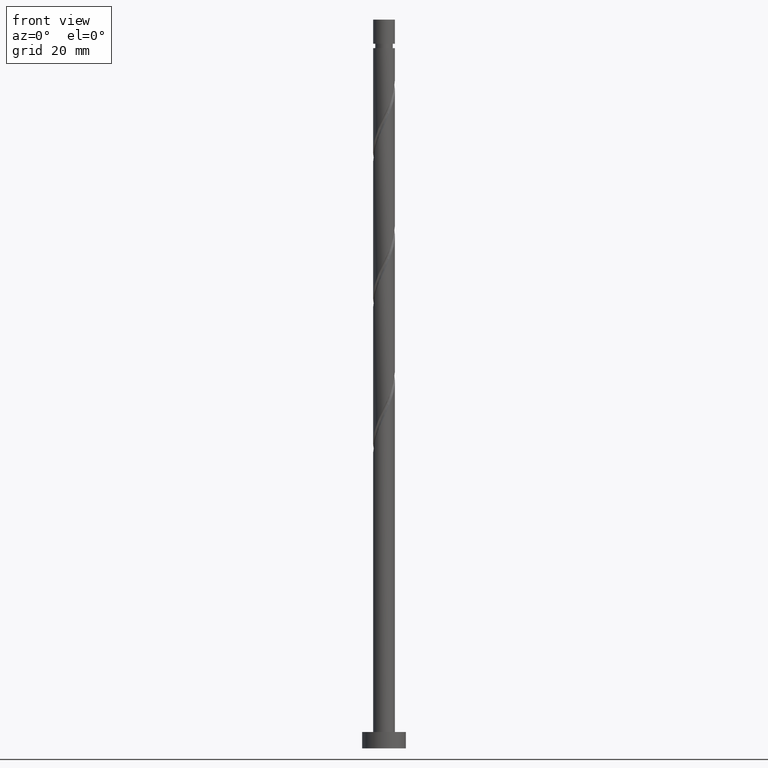
[diagram: clean part render]
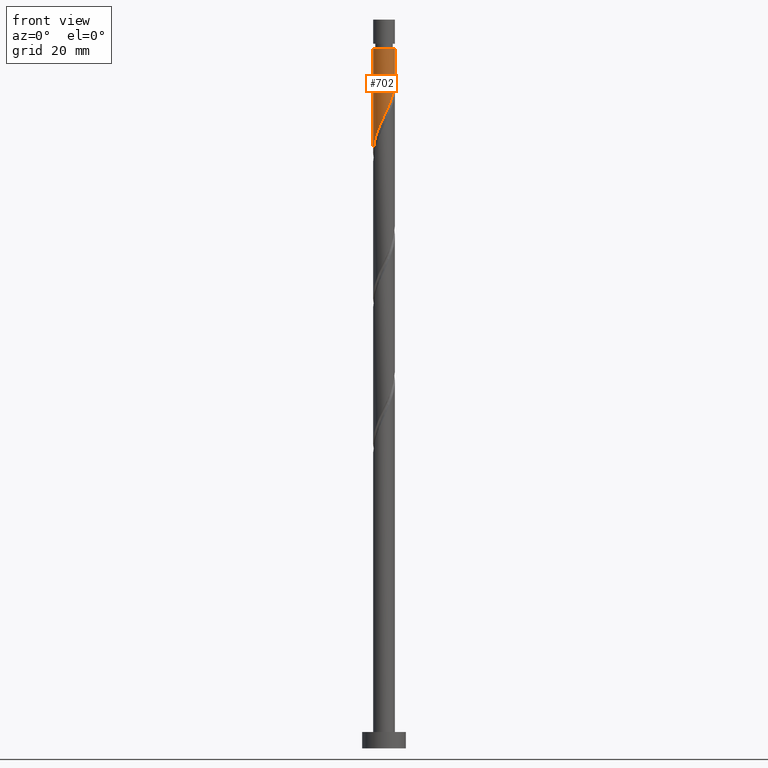
[diagram: same view with one face highlighted and labeled with its STEP entity id]
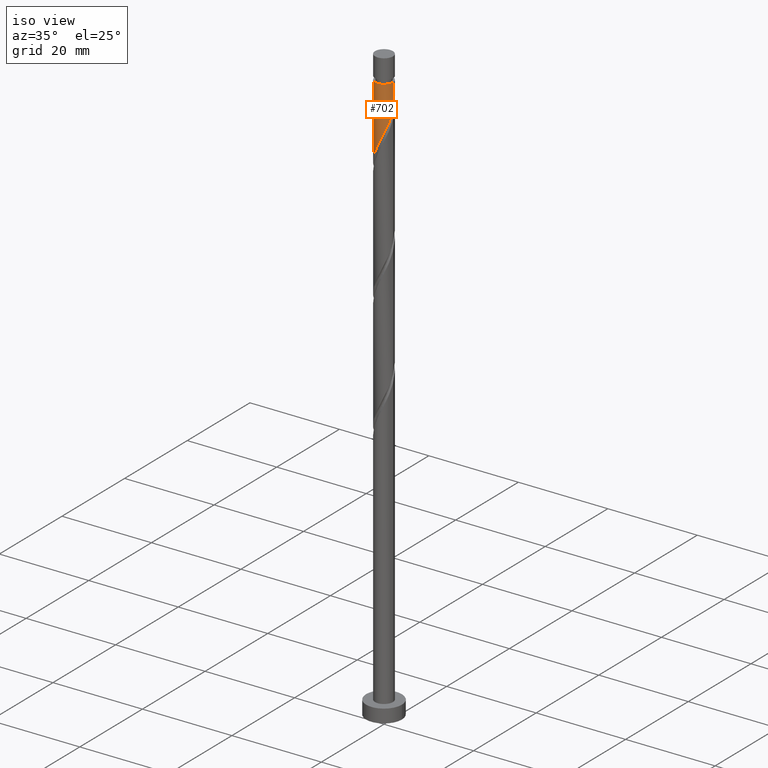
[diagram: same view with one face highlighted and labeled with its STEP entity id]
A machine part, front view. The second image highlights one B-rep face of the part: STEP entity #702.
A second angle (iso view) of the same face is appended — the face is thin or edge-on in the first view.
In plain terms, the highlighted cylindrical surface (edge-blend (fillet) strip) has radius 2 mm, axis along (-0, -0, -1).
Its self-contained STEP definition (entity closure, byte-faithful):
#1 = CARTESIAN_POINT ( 'NONE',  ( 1.980155124014551182, -0.4020876473299556109, 121.5479993580054696 ) ) ;
#4 = VERTEX_POINT ( 'NONE', #516 ) ;
#21 = FACE_OUTER_BOUND ( 'NONE', #221, .T. ) ;
#40 = CARTESIAN_POINT ( 'NONE',  ( 0.000000000000000000, 0.000000000000000000, 133.4499999999999886 ) ) ;
#106 = CARTESIAN_POINT ( 'NONE',  ( -2.000000000000000444, 1.884559408640555319E-15, 109.0641205039730437 ) ) ;
#114 = CARTESIAN_POINT ( 'NONE',  ( -1.741900447066338176, -0.9827425057002935338, 111.2449690549751722 ) ) ;
#140 = CARTESIAN_POINT ( 'NONE',  ( 1.220637884402353990, -1.584311571365224047, 118.5176963277024527 ) ) ;
#189 = VERTEX_POINT ( 'NONE', #356 ) ;
#191 = VECTOR ( 'NONE', #317, 1000.000000000000000 ) ;
#221 = EDGE_LOOP ( 'NONE', ( #1522, #252, #1319, #403 ) ) ;
#237 = CARTESIAN_POINT ( 'NONE',  ( -1.394470680848406197, -1.433684595806965500, 112.4570902670963761 ) ) ;
#245 = CARTESIAN_POINT ( 'NONE',  ( -1.188337955536407309, -1.634179211325358372, 113.0631508731569852 ) ) ;
#252 = ORIENTED_EDGE ( 'NONE', *, *, #1128, .T. ) ;
#253 = CARTESIAN_POINT ( 'NONE',  ( -0.3979949748426485634, -1.959999999999999964, 114.8813326913388266 ) ) ;
#301 = CARTESIAN_POINT ( 'NONE',  ( -1.999999999999996669, 0.000000000000000000, 128.2146660246721694 ) ) ;
#305 = VECTOR ( 'NONE', #566, 1000.000000000000000 ) ;
#314 = EDGE_CURVE ( 'NONE', #189, #4, #1289, .T. ) ;
#317 = DIRECTION ( 'NONE',  ( -0.000000000000000000, -0.000000000000000000, -1.000000000000000000 ) ) ;
#356 = CARTESIAN_POINT ( 'NONE',  ( 2.000000000000000000, 4.786182625118871402E-16, 122.3974538373063723 ) ) ;
#366 = CARTESIAN_POINT ( 'NONE',  ( 1.883409435608316418, -0.6728810428757545647, 120.9419387519448463 ) ) ;
#376 = CARTESIAN_POINT ( 'NONE',  ( -2.000000000000000888, -0.2290578547702447343, 109.5500804569443574 ) ) ;
#390 = CARTESIAN_POINT ( 'NONE',  ( 1.617545623245912001, -1.176242388590886589, 119.7298175398236566 ) ) ;
#403 = ORIENTED_EDGE ( 'NONE', *, *, #314, .F. ) ;
#494 = VERTEX_POINT ( 'NONE', #301 ) ;
#496 = CARTESIAN_POINT ( 'NONE',  ( 1.996690616564939846, -0.1150068768444773709, 122.1540599640660787 ) ) ;
#516 = CARTESIAN_POINT ( 'NONE',  ( -2.000000000000000444, 1.884559408640555319E-15, 109.0641205039730437 ) ) ;
#541 = VERTEX_POINT ( 'NONE', #1431 ) ;
#566 = DIRECTION ( 'NONE',  ( -0.000000000000000000, -0.000000000000000000, -1.000000000000000000 ) ) ;
#610 = CARTESIAN_POINT ( 'NONE',  ( 2.000000000000000444, -0.05755105304764637081, 122.2753558325881471 ) ) ;
#642 = CARTESIAN_POINT ( 'NONE',  ( 0.4568343776401059264, -1.968245701812300963, 116.6995145095206396 ) ) ;
#702 = ADVANCED_FACE ( 'NONE', ( #21 ), #1577, .T. ) ;
#737 = CARTESIAN_POINT ( 'NONE',  ( -1.883197487972271711, -0.7322950311120142164, 110.6389084489145773 ) ) ;
#819 = EDGE_CURVE ( 'NONE', #494, #4, #850, .T. ) ;
#850 = LINE ( 'NONE', #1372, #191 ) ;
#861 = CARTESIAN_POINT ( 'NONE',  ( 1.786663747202082320, -0.9436744384215538517, 120.3358781458842799 ) ) ;
#868 = CARTESIAN_POINT ( 'NONE',  ( 1.448427499289742126, -1.408810338760219993, 119.1237569337630617 ) ) ;
#877 = CARTESIAN_POINT ( 'NONE',  ( -1.600603406160405084, -1.233189980288572851, 111.8510296610357955 ) ) ;
#1003 = CARTESIAN_POINT ( 'NONE',  ( 0.1703224295138018596, -1.992734370156875157, 116.0934539034600306 ) ) ;
#1058 = DIRECTION ( 'NONE',  ( -0.000000000000000000, -0.000000000000000000, -1.000000000000000000 ) ) ;
#1087 = CARTESIAN_POINT ( 'NONE',  ( 0.000000000000000000, 0.000000000000000000, 128.2146660246721694 ) ) ;
#1107 = EDGE_CURVE ( 'NONE', #541, #189, #1220, .T. ) ;
#1128 = EDGE_CURVE ( 'NONE', #541, #494, #1456, .T. ) ;
#1129 = AXIS2_PLACEMENT_3D ( 'NONE', #40, #1058, #1197 ) ;
#1158 = CARTESIAN_POINT ( 'NONE',  ( -0.6798004310727959743, -1.902776961498551911, 114.2752720852782176 ) ) ;
#1197 = DIRECTION ( 'NONE',  ( -1.000000000000000000, 0.000000000000000000, 0.000000000000000000 ) ) ;
#1220 = LINE ( 'NONE', #1508, #305 ) ;
#1260 = CARTESIAN_POINT ( 'NONE',  ( -1.948211798543800333, -0.4521844623765076676, 110.0328478428539398 ) ) ;
#1287 = CARTESIAN_POINT ( 'NONE',  ( 2.000000000000000000, 4.786182625118871402E-16, 122.3974538373063723 ) ) ;
#1289 =( BOUNDED_CURVE ( )  B_SPLINE_CURVE ( 2, ( #1287, #610, #496, #1, #366, #861, #390, #868, #140, #1649, #1510, #642, #1003, #1391, #253, #1158, #1383, #245, #237, #877, #114, #737, #1260, #376, #106 ),
 .UNSPECIFIED., .F., .T. ) 
 B_SPLINE_CURVE_WITH_KNOTS ( ( 3, 2, 2, 2, 2, 2, 2, 2, 2, 2, 2, 2, 3 ),
 ( 0.3045252162417513841, 0.3068181818181818232, 0.3181818181818181768, 0.3295454545454545303, 0.3409090909090908839, 0.3522727272727272929, 0.3636363636363636465, 0.3750000000000000000, 0.3863636363636363535, 0.3977272727272727071, 0.4090909090909091161, 0.4204545454545454697, 0.4295252162417513841 ),
 .UNSPECIFIED. ) 
 CURVE ( )  GEOMETRIC_REPRESENTATION_ITEM ( )  RATIONAL_B_SPLINE_CURVE ( ( 0.9061101570135567940, 0.9072237824201390133, 0.9090909090909164991, 0.8998376744372188485, 0.9090909090909164991, 0.8998376744372188485, 0.9090909090909164991, 0.8998376744372188485, 0.9090909090909164991, 0.8998376744372188485, 0.9090909090909164991, 0.8998376744372188485, 0.9090909090909164991, 0.8998376744372188485, 0.9090909090909164991, 0.8998376744372188485, 0.9090909090909164991, 0.8998376744372188485, 0.9090909090909164991, 0.8998376744372188485, 0.9090909090909164991, 0.8998376744372188485, 0.9090909090909164991, 0.9017048011079962233, 0.9061101570135567940 ) ) 
 REPRESENTATION_ITEM ( '' )  );
#1319 = ORIENTED_EDGE ( 'NONE', *, *, #819, .T. ) ;
#1372 = CARTESIAN_POINT ( 'NONE',  ( -2.000000000000000000, 0.000000000000000000, 133.4499999999999886 ) ) ;
#1376 = AXIS2_PLACEMENT_3D ( 'NONE', #1087, #1599, #1607 ) ;
#1383 = CARTESIAN_POINT ( 'NONE',  ( -0.9340691933046018081, -1.768478086411955363, 113.6692114792176085 ) ) ;
#1391 = CARTESIAN_POINT ( 'NONE',  ( -0.1161895186125011109, -2.017223038501448240, 115.4873932973994499 ) ) ;
#1431 = CARTESIAN_POINT ( 'NONE',  ( 1.999999999999996669, 2.449293598294703949E-16, 128.2146660246721694 ) ) ;
#1456 = CIRCLE ( 'NONE', #1376, 1.999999999999996669 ) ;
#1508 = CARTESIAN_POINT ( 'NONE',  ( 2.000000000000000000, 2.449293598294706414E-16, 133.4499999999999886 ) ) ;
#1510 = CARTESIAN_POINT ( 'NONE',  ( 0.7248413235775362784, -1.864029252891264310, 117.3055751155812345 ) ) ;
#1522 = ORIENTED_EDGE ( 'NONE', *, *, #1107, .F. ) ;
#1577 = CYLINDRICAL_SURFACE ( 'NONE', #1129, 2.000000000000000000 ) ;
#1599 = DIRECTION ( 'NONE',  ( -0.000000000000000000, -0.000000000000000000, -1.000000000000000000 ) ) ;
#1607 = DIRECTION ( 'NONE',  ( -1.000000000000000000, 0.000000000000000000, 0.000000000000000000 ) ) ;
#1649 = CARTESIAN_POINT ( 'NONE',  ( 0.9928482695149670745, -1.759812803970228101, 117.9116357216418578 ) ) ;